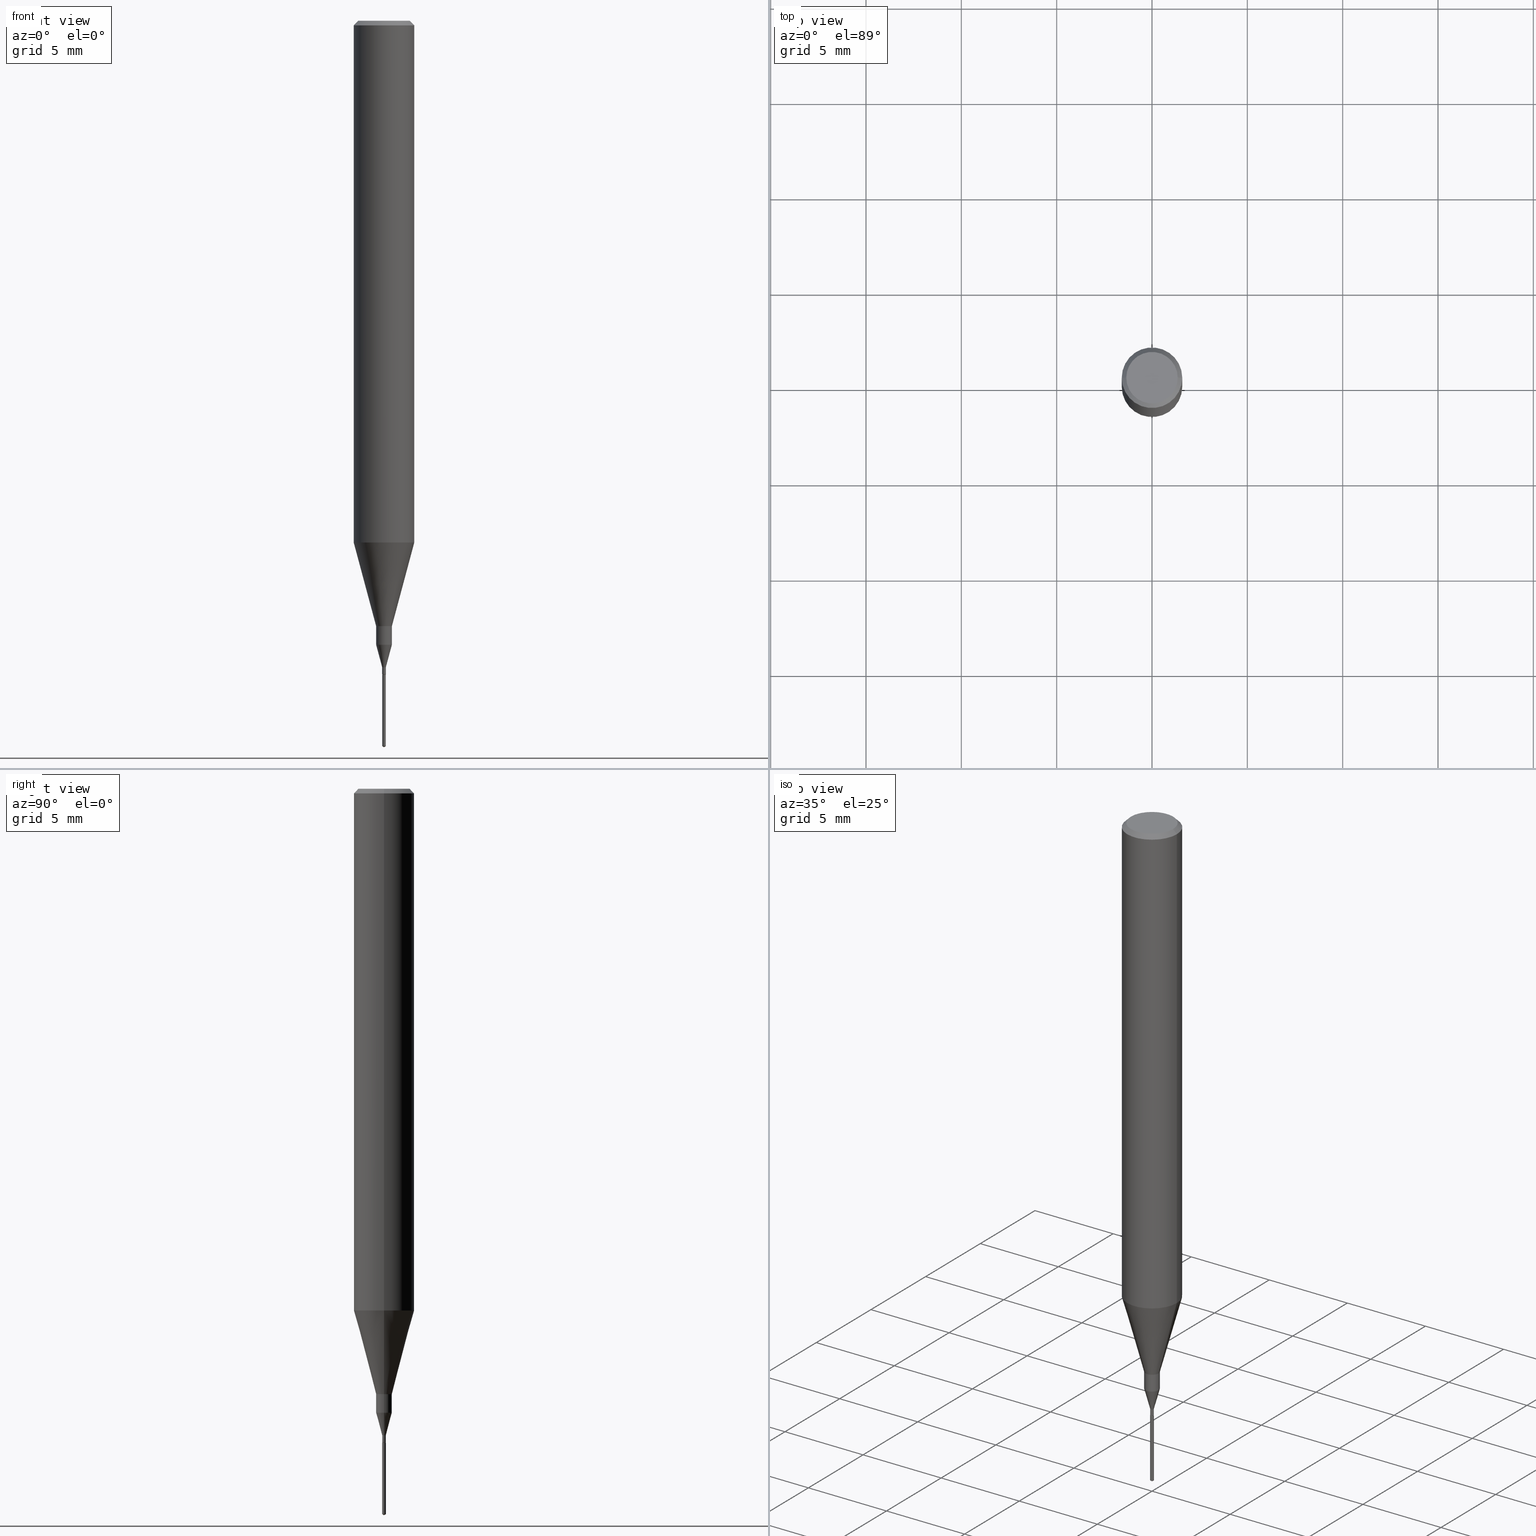
[diagram: canonical four-view strip — front | top / right | iso, engineering-drawing reading convention]
A machine part, canonical four-view strip (front | top / right | iso — engineering-drawing reading convention). The complete STEP part file that produces these views, byte-faithful:
ISO-10303-21;
HEADER;
FILE_DESCRIPTION (( 'STEP AP203' ),
    '1' );
FILE_NAME ('07245.STEP',
    '2024-04-19T13:30:18',
    ( '' ),
    ( '' ),
    'SwSTEP 2.0',
    'SolidWorks 2023',
    '' );
FILE_SCHEMA (( 'CONFIG_CONTROL_DESIGN' ));
ENDSEC;

DATA;
#1 = DIRECTION ( 'NONE',  ( 1.000000000000000000, -6.982962677686266711E-15, 4.875930095424100059E-29 ) ) ;
#2 = SECURITY_CLASSIFICATION_LEVEL ( 'unclassified' ) ;
#3 = CIRCLE ( 'NONE', #135, 0.01624999999999999709 ) ;
#4 =( NAMED_UNIT ( * ) PLANE_ANGLE_UNIT ( ) SI_UNIT ( $, .RADIAN. ) );
#5 = ADVANCED_FACE ( 'NONE', ( #122 ), #386, .T. ) ;
#6 = DIRECTION ( 'NONE',  ( 1.000000000000000000, -6.982962677686139704E-15, 0.000000000000000000 ) ) ;
#7 = CIRCLE ( 'NONE', #280, 0.06250000000000012490 ) ;
#8 = PRODUCT_DEFINITION_FORMATION_WITH_SPECIFIED_SOURCE ( 'ANY', '', #250, .NOT_KNOWN. ) ;
#9 = VECTOR ( 'NONE', #166, 39.37007874015748143 ) ;
#10 = DATE_AND_TIME ( #459, #360 ) ;
#11 = CARTESIAN_POINT ( 'NONE',  ( 3.301382888349935078E-29, -4.713499807438246596E-15, -1.350000000000000089 ) ) ;
#12 = DIRECTION ( 'NONE',  ( -2.445468806185136597E-29, 3.491481338843145583E-15, 1.000000000000000000 ) ) ;
#13 = ORIENTED_EDGE ( 'NONE', *, *, #264, .F. ) ;
#14 = ORIENTED_EDGE ( 'NONE', *, *, #23, .T. ) ;
#15 = PERSON_AND_ORGANIZATION ( #267, #49 ) ;
#16 = DIRECTION ( 'NONE',  ( 1.000000000000000000, -6.982962677686266711E-15, 4.876176775795935793E-29 ) ) ;
#17 = PERSON_AND_ORGANIZATION ( #267, #49 ) ;
#18 = EDGE_LOOP ( 'NONE', ( #540, #67, #542, #334 ) ) ;
#19 = CC_DESIGN_APPROVAL ( #31, ( #8 ) ) ;
#20 = LINE ( 'NONE', #431, #217 ) ;
#21 = PERSON_AND_ORGANIZATION_ROLE ( 'design_owner' ) ;
#22 = DIRECTION ( 'NONE',  ( -2.445468806185136597E-29, 3.491481338843145583E-15, 1.000000000000000000 ) ) ;
#23 = EDGE_CURVE ( 'NONE', #59, #584, #93, .T. ) ;
#24 = ORIENTED_EDGE ( 'NONE', *, *, #231, .T. ) ;
#25 = VERTEX_POINT ( 'NONE', #480 ) ;
#26 = AXIS2_PLACEMENT_3D ( 'NONE', #105, #306, #432 ) ;
#27 = CIRCLE ( 'NONE', #587, 0.01625000000000000056 ) ;
#28 = CARTESIAN_POINT ( 'NONE',  ( 3.674846187787069844E-29, -5.227856705711817904E-15, -1.500000000000000222 ) ) ;
#29 = ORIENTED_EDGE ( 'NONE', *, *, #458, .F. ) ;
#30 = EDGE_CURVE ( 'NONE', #570, #311, #77, .T. ) ;
#31 = APPROVAL ( #162, 'UNSPECIFIED' ) ;
#32 = CALENDAR_DATE ( 2024, 19, 4 ) ;
#33 = CONICAL_SURFACE ( 'NONE', #146, 0.06250000000000012490, 0.2617993877991501295 ) ;
#34 = ORIENTED_EDGE ( 'NONE', *, *, #108, .T. ) ;
#35 = VERTEX_POINT ( 'NONE', #361 ) ;
#36 = VERTEX_POINT ( 'NONE', #538 ) ;
#37 = VECTOR ( 'NONE', #438, 39.37007874015748854 ) ;
#38 = DIRECTION ( 'NONE',  ( 2.449828643397946138E-29, -3.485237803807878340E-15, -1.000000000000000000 ) ) ;
#39 = CARTESIAN_POINT ( 'NONE',  ( 0.06250000000000012490, -4.198131499960668153E-15, -1.077392650149939346 ) ) ;
#40 = AXIS2_PLACEMENT_3D ( 'NONE', #120, #225, #176 ) ;
#41 = ORIENTED_EDGE ( 'NONE', *, *, #458, .T. ) ;
#42 = AXIS2_PLACEMENT_3D ( 'NONE', #283, #43, #137 ) ;
#43 = DIRECTION ( 'NONE',  ( -2.438088387897960049E-29, 3.491481338843145188E-15, 1.000000000000000000 ) ) ;
#44 = CIRCLE ( 'NONE', #389, 0.01624999999999999709 ) ;
#45 = AXIS2_PLACEMENT_3D ( 'NONE', #463, #254, #552 ) ;
#46 = CARTESIAN_POINT ( 'NONE',  ( 3.301382888349935078E-29, -4.713499807438246596E-15, -1.350000000000000089 ) ) ;
#47 = DIRECTION ( 'NONE',  ( -2.445468806185136597E-29, 3.491481338843145583E-15, 1.000000000000000000 ) ) ;
#48 = ADVANCED_FACE ( 'NONE', ( #327 ), #461, .T. ) ;
#49 = ORGANIZATION ( 'UNSPECIFIED', 'UNSPECIFIED', '' ) ;
#50 = ADVANCED_FACE ( 'NONE', ( #253 ), #229, .T. ) ;
#51 = CONICAL_SURFACE ( 'NONE', #81, 0.06250000000000000000, 0.7853981633974452814 ) ;
#52 = CARTESIAN_POINT ( 'NONE',  ( 0.01625000000000000056, -4.611720908989987223E-15, -1.288349364905389427 ) ) ;
#53 = CYLINDRICAL_SURFACE ( 'NONE', #378, 0.003749999999999999428 ) ;
#54 = CARTESIAN_POINT ( 'NONE',  ( -2.618611004128684833E-17, -0.003750000000005227017, -1.497746772678646865 ) ) ;
#55 = LENGTH_MEASURE_WITH_UNIT ( LENGTH_MEASURE( 0.02539999999999999897 ), #416 );
#56 = DIRECTION ( 'NONE',  ( 1.000000000000000000, -6.982962677686288799E-15, 0.000000000000000000 ) ) ;
#57 = AXIS2_PLACEMENT_3D ( 'NONE', #244, #453, #418 ) ;
#58 = DIRECTION ( 'NONE',  ( 0.7071067811865453523, -7.319954787623248157E-15, -0.7071067811865496822 ) ) ;
#59 = VERTEX_POINT ( 'NONE', #488 ) ;
#60 = CARTESIAN_POINT ( 'NONE',  ( 0.01625000000000000056, -4.611720908989987223E-15, -1.288349364905389427 ) ) ;
#61 = APPROVAL_DATE_TIME ( #345, #245 ) ;
#62 = CARTESIAN_POINT ( 'NONE',  ( 3.264700856257157760E-29, -4.661127587355599122E-15, -1.335000000000000187 ) ) ;
#63 = DIRECTION ( 'NONE',  ( 2.438088387897960049E-29, -3.491481338843145188E-15, -1.000000000000000000 ) ) ;
#64 = ORIENTED_EDGE ( 'NONE', *, *, #440, .T. ) ;
#65 = AXIS2_PLACEMENT_3D ( 'NONE', #500, #414, #544 ) ;
#66 = ADVANCED_FACE ( 'NONE', ( #368 ), #234, .F. ) ;
#67 = ORIENTED_EDGE ( 'NONE', *, *, #395, .T. ) ;
#68 = CC_DESIGN_APPROVAL ( #245, ( #451 ) ) ;
#69 = FACE_OUTER_BOUND ( 'NONE', #216, .T. ) ;
#70 = ORIENTED_EDGE ( 'NONE', *, *, #319, .T. ) ;
#71 = CARTESIAN_POINT ( 'NONE',  ( 0.000000000000000000, 0.000000000000000000, 0.000000000000000000 ) ) ;
#72 = ORIENTED_EDGE ( 'NONE', *, *, #275, .F. ) ;
#73 = EDGE_CURVE ( 'NONE', #539, #88, #292, .T. ) ;
#74 = CC_DESIGN_DATE_AND_TIME_ASSIGNMENT ( #246, #427, ( #249 ) ) ;
#75 = CYLINDRICAL_SURFACE ( 'NONE', #113, 0.06250000000000006939 ) ;
#76 = DIRECTION ( 'NONE',  ( 1.000000000000000000, -6.982962677686139704E-15, 0.000000000000000000 ) ) ;
#77 = LINE ( 'NONE', #124, #175 ) ;
#78 = DIRECTION ( 'NONE',  ( -5.985567269335973623E-15, -0.8571673007021146651, 0.5150380749100500477 ) ) ;
#79 = DIRECTION ( 'NONE',  ( 0.7071067811866184050, -2.468850131082999773E-15, 0.7071067811864765185 ) ) ;
#80 = DIRECTION ( 'NONE',  ( -0.2588190451025214611, 5.211531920934551042E-15, 0.9659258262890682012 ) ) ;
#81 = AXIS2_PLACEMENT_3D ( 'NONE', #147, #426, #153 ) ;
#82 = DIRECTION ( 'NONE',  ( -0.2588190451025219052, 5.211531920934553408E-15, 0.9659258262890679791 ) ) ;
#83 = DIRECTION ( 'NONE',  ( -2.445468806185136597E-29, 3.491481338843145583E-15, 1.000000000000000000 ) ) ;
#84 = ORIENTED_EDGE ( 'NONE', *, *, #239, .T. ) ;
#85 = DIRECTION ( 'NONE',  ( -2.445468806185136597E-29, 3.491481338843145583E-15, 1.000000000000000000 ) ) ;
#86 = CARTESIAN_POINT ( 'NONE',  ( -9.278108940561071411E-28, 1.319778012860802633E-13, 37.87007874015748143 ) ) ;
#87 = EDGE_CURVE ( 'NONE', #25, #350, #187, .T. ) ;
#88 = VERTEX_POINT ( 'NONE', #379 ) ;
#89 = ORIENTED_EDGE ( 'NONE', *, *, #73, .F. ) ;
#90 = EDGE_CURVE ( 'NONE', #35, #136, #195, .T. ) ;
#91 = DIRECTION ( 'NONE',  ( -2.445468806185136877E-29, 3.491481338843145188E-15, 1.000000000000000000 ) ) ;
#92 = DIRECTION ( 'NONE',  ( -2.445468806185136597E-29, 3.491481338843145583E-15, 1.000000000000000000 ) ) ;
#93 = CIRCLE ( 'NONE', #260, 0.05312499999999999861 ) ;
#94 = CARTESIAN_POINT ( 'NONE',  ( 2.634730117954813298E-29, -3.761696332605275695E-15, -1.077392650149939346 ) ) ;
#95 = DIRECTION ( 'NONE',  ( -2.449828643397946418E-29, 3.485237803807878340E-15, 1.000000000000000000 ) ) ;
#96 = LINE ( 'NONE', #188, #478 ) ;
#97 = COORDINATED_UNIVERSAL_TIME_OFFSET ( 5, 0, .BEHIND. ) ;
#98 = DIRECTION ( 'NONE',  ( -2.445468806185136597E-29, 3.491481338843145583E-15, 1.000000000000000000 ) ) ;
#99 = DIRECTION ( 'NONE',  ( 1.000000000000000000, -6.982962677686264344E-15, 0.000000000000000000 ) ) ;
#100 = PERSON_AND_ORGANIZATION_ROLE ( 'creator' ) ;
#101 = VECTOR ( 'NONE', #179, 39.37007874015748143 ) ;
#102 = FACE_OUTER_BOUND ( 'NONE', #273, .T. ) ;
#103 = PERSON_AND_ORGANIZATION ( #267, #49 ) ;
#104 = ORIENTED_EDGE ( 'NONE', *, *, #90, .F. ) ;
#105 = CARTESIAN_POINT ( 'NONE',  ( 3.150618183344561304E-29, -4.498247765477585547E-15, -1.288349364905389427 ) ) ;
#106 = CIRCLE ( 'NONE', #156, 0.003749999999999998994 ) ;
#107 = VERTEX_POINT ( 'NONE', #189 ) ;
#108 = EDGE_CURVE ( 'NONE', #143, #435, #284, .T. ) ;
#109 = DIMENSIONAL_EXPONENTS ( 1.000000000000000000, 0.000000000000000000, 0.000000000000000000, 0.000000000000000000, 0.000000000000000000, 0.000000000000000000, 0.000000000000000000 ) ;
#110 = AXIS2_PLACEMENT_3D ( 'NONE', #516, #112, #471 ) ;
#111 = ORIENTED_EDGE ( 'NONE', *, *, #23, .F. ) ;
#112 = DIRECTION ( 'NONE',  ( -2.449828643397946418E-29, 3.485237803807878340E-15, 1.000000000000000000 ) ) ;
#113 = AXIS2_PLACEMENT_3D ( 'NONE', #119, #317, #271 ) ;
#114 = ORIENTED_EDGE ( 'NONE', *, *, #356, .F. ) ;
#115 = DIRECTION ( 'NONE',  ( -2.445468806185136877E-29, 3.491481338843145188E-15, 1.000000000000000000 ) ) ;
#116 = DIRECTION ( 'NONE',  ( -2.445468806185136597E-29, 3.491481338843145583E-15, 1.000000000000000000 ) ) ;
#117 = DIRECTION ( 'NONE',  ( 2.445468806185136597E-29, -3.491481338843145583E-15, -1.000000000000000000 ) ) ;
#118 = EDGE_LOOP ( 'NONE', ( #430, #282, #357, #269 ) ) ;
#119 = CARTESIAN_POINT ( 'NONE',  ( 0.000000000000000000, 0.000000000000000000, 0.000000000000000000 ) ) ;
#120 = CARTESIAN_POINT ( 'NONE',  ( 0.000000000000000000, 0.000000000000000000, 0.000000000000000000 ) ) ;
#121 = LINE ( 'NONE', #362, #550 ) ;
#122 = FACE_OUTER_BOUND ( 'NONE', #224, .T. ) ;
#123 = AXIS2_PLACEMENT_3D ( 'NONE', #390, #212, #76 ) ;
#124 = CARTESIAN_POINT ( 'NONE',  ( -0.06250000000000012490, -3.317607122755211895E-15, -1.077392650149939346 ) ) ;
#125 = CARTESIAN_POINT ( 'NONE',  ( -0.06250000000000006939, 4.440892098500631092E-16, -3.074334431409319267E-30 ) ) ;
#126 = DIRECTION ( 'NONE',  ( -2.445468806185136597E-29, 3.491481338843145583E-15, 1.000000000000000000 ) ) ;
#127 = EDGE_LOOP ( 'NONE', ( #72, #159, #490, #208 ) ) ;
#128 = ADVANCED_FACE ( 'NONE', ( #503 ), #33, .T. ) ;
#129 = ADVANCED_BREP_SHAPE_REPRESENTATION ( '07245', ( #235, #302, #40 ), #495 ) ;
#130 = ORIENTED_EDGE ( 'NONE', *, *, #199, .T. ) ;
#131 = DIRECTION ( 'NONE',  ( -6.982962677686265133E-15, -1.000000000000000000, 3.468864327941528739E-15 ) ) ;
#132 = DIRECTION ( 'NONE',  ( -6.982962677686265133E-15, -1.000000000000000000, 3.468864327941528739E-15 ) ) ;
#133 = CIRCLE ( 'NONE', #200, 0.003749999999999994223 ) ;
#134 = CIRCLE ( 'NONE', #573, 0.003250000000000000284 ) ;
#135 = AXIS2_PLACEMENT_3D ( 'NONE', #555, #98, #333 ) ;
#136 = VERTEX_POINT ( 'NONE', #498 ) ;
#137 = DIRECTION ( 'NONE',  ( 1.000000000000000000, -6.982962677686265922E-15, 4.876176775795935793E-29 ) ) ;
#138 = CLOSED_SHELL ( 'NONE', ( #347, #50, #499, #533, #243 ) ) ;
#139 = EDGE_CURVE ( 'NONE', #59, #36, #96, .T. ) ;
#140 = AXIS2_PLACEMENT_3D ( 'NONE', #71, #266, #16 ) ;
#141 = CARTESIAN_POINT ( 'NONE',  ( 0.06250000000000006939, -4.364351673553921624E-16, 3.047610484872463374E-30 ) ) ;
#142 = CC_DESIGN_PERSON_AND_ORGANIZATION_ASSIGNMENT ( #366, #412, ( #8 ) ) ;
#143 = VERTEX_POINT ( 'NONE', #54 ) ;
#144 = CONICAL_SURFACE ( 'NONE', #562, 0.003250000000000000284, 0.7853981633975486432 ) ;
#145 = LINE ( 'NONE', #337, #575 ) ;
#146 = AXIS2_PLACEMENT_3D ( 'NONE', #375, #546, #99 ) ;
#147 = CARTESIAN_POINT ( 'NONE',  ( 2.292627005798582375E-31, -3.273263755165472650E-17, -0.009375000000000067307 ) ) ;
#148 = ORIENTED_EDGE ( 'NONE', *, *, #139, .F. ) ;
#149 = APPROVAL_STATUS ( 'not_yet_approved' ) ;
#150 = EDGE_CURVE ( 'NONE', #311, #539, #316, .T. ) ;
#151 = EDGE_LOOP ( 'NONE', ( #64, #305 ) ) ;
#152 = CC_DESIGN_PERSON_AND_ORGANIZATION_ASSIGNMENT ( #103, #261, ( #249 ) ) ;
#153 = DIRECTION ( 'NONE',  ( -1.000000000000000000, 6.982962677686266711E-15, 0.000000000000000000 ) ) ;
#154 = COORDINATED_UNIVERSAL_TIME_OFFSET ( 5, 0, .BEHIND. ) ;
#155 = APPROVAL_STATUS ( 'not_yet_approved' ) ;
#156 = AXIS2_PLACEMENT_3D ( 'NONE', #338, #505, #242 ) ;
#157 = ORIENTED_EDGE ( 'NONE', *, *, #582, .T. ) ;
#158 = APPROVAL_ROLE ( '' ) ;
#159 = ORIENTED_EDGE ( 'NONE', *, *, #356, .T. ) ;
#160 = DIRECTION ( 'NONE',  ( -2.445468806185136877E-29, 3.491481338843145188E-15, 1.000000000000000000 ) ) ;
#161 = UNCERTAINTY_MEASURE_WITH_UNIT (LENGTH_MEASURE( 1.000000000000000082E-05 ), #286, 'distance_accuracy_value', 'NONE');
#162 = APPROVAL_STATUS ( 'not_yet_approved' ) ;
#163 = ORIENTED_EDGE ( 'NONE', *, *, #199, .F. ) ;
#164 = LOCAL_TIME ( 9, 30, 18.00000000000000000, #419 ) ;
#165 = EDGE_LOOP ( 'NONE', ( #255, #523, #130, #204 ) ) ;
#166 = DIRECTION ( 'NONE',  ( -2.445468806185136877E-29, 3.491481338843145188E-15, 1.000000000000000000 ) ) ;
#167 = ORIENTED_EDGE ( 'NONE', *, *, #192, .T. ) ;
#168 = CARTESIAN_POINT ( 'NONE',  ( 3.301382888349935078E-29, -4.713499807438246596E-15, -1.350000000000000089 ) ) ;
#169 = DIRECTION ( 'NONE',  ( -6.982962677686265922E-15, -1.000000000000000000, 0.000000000000000000 ) ) ;
#170 = FACE_OUTER_BOUND ( 'NONE', #481, .T. ) ;
#171 = FACE_OUTER_BOUND ( 'NONE', #214, .T. ) ;
#172 = ADVANCED_FACE ( 'NONE', ( #384 ), #232, .T. ) ;
#173 = DIRECTION ( 'NONE',  ( -2.445468806185136597E-29, 3.491481338843145583E-15, 1.000000000000000000 ) ) ;
#174 = ADVANCED_FACE ( 'NONE', ( #511 ), #507, .T. ) ;
#175 = VECTOR ( 'NONE', #80, 39.37007874015747433 ) ;
#176 = DIRECTION ( 'NONE',  ( 1.000000000000000000, 0.000000000000000000, 0.000000000000000000 ) ) ;
#177 = VECTOR ( 'NONE', #91, 39.37007874015748143 ) ;
#178 = ORIENTED_EDGE ( 'NONE', *, *, #108, .F. ) ;
#179 = DIRECTION ( 'NONE',  ( -2.449828643397946418E-29, 3.485237803807878340E-15, 1.000000000000000000 ) ) ;
#180 = ORIENTED_EDGE ( 'NONE', *, *, #239, .F. ) ;
#181 = EDGE_CURVE ( 'NONE', #107, #25, #381, .T. ) ;
#182 = EDGE_CURVE ( 'NONE', #143, #479, #372, .T. ) ;
#183 = ORIENTED_EDGE ( 'NONE', *, *, #371, .T. ) ;
#184 = SHAPE_DEFINITION_REPRESENTATION ( #202, #129 ) ;
#185 = DIRECTION ( 'NONE',  ( 1.000000000000000000, -6.982962677686267499E-15, 4.876176775795936353E-29 ) ) ;
#186 =( NAMED_UNIT ( * ) SI_UNIT ( $, .STERADIAN. ) SOLID_ANGLE_UNIT ( ) );
#187 = LINE ( 'NONE', #52, #301 ) ;
#188 = CARTESIAN_POINT ( 'NONE',  ( -0.06250000000000000000, 4.037025298037369491E-16, -0.009375000000000067307 ) ) ;
#189 = CARTESIAN_POINT ( 'NONE',  ( -0.003749999999999994223, -4.659795474471208129E-15, -1.335000000000000187 ) ) ;
#190 = VECTOR ( 'NONE', #496, 39.37007874015748143 ) ;
#191 = CARTESIAN_POINT ( 'NONE',  ( 3.301382888349935078E-29, -4.713499807438246596E-15, -1.350000000000000089 ) ) ;
#192 = EDGE_CURVE ( 'NONE', #36, #88, #504, .T. ) ;
#193 = CONICAL_SURFACE ( 'NONE', #543, 65.52281426576966794, 1.029744258676662749 ) ;
#194 = CC_DESIGN_SECURITY_CLASSIFICATION ( #249, ( #8 ) ) ;
#195 = CIRCLE ( 'NONE', #520, 0.003749999999999999428 ) ;
#196 = ORIENTED_EDGE ( 'NONE', *, *, #413, .T. ) ;
#197 = AXIS2_PLACEMENT_3D ( 'NONE', #247, #285, #233 ) ;
#198 = CARTESIAN_POINT ( 'NONE',  ( 3.301382888349935078E-29, -4.713499807438246596E-15, -1.350000000000000089 ) ) ;
#199 = EDGE_CURVE ( 'NONE', #307, #539, #145, .T. ) ;
#200 = AXIS2_PLACEMENT_3D ( 'NONE', #62, #22, #568 ) ;
#201 = DIRECTION ( 'NONE',  ( -6.982962677686265922E-15, -1.000000000000000000, 0.000000000000000000 ) ) ;
#202 = PRODUCT_DEFINITION_SHAPE ( 'NONE', 'NONE',  #451 ) ;
#203 = APPLICATION_CONTEXT ( 'configuration controlled 3d designs of mechanical parts and assemblies' ) ;
#204 = ORIENTED_EDGE ( 'NONE', *, *, #150, .F. ) ;
#205 = VERTEX_POINT ( 'NONE', #502 ) ;
#206 = FACE_OUTER_BOUND ( 'NONE', #118, .T. ) ;
#207 = CARTESIAN_POINT ( 'NONE',  ( 2.634730117954813298E-29, -3.761696332605275695E-15, -1.077392650149939346 ) ) ;
#208 = ORIENTED_EDGE ( 'NONE', *, *, #310, .F. ) ;
#209 = CARTESIAN_POINT ( 'NONE',  ( -0.003250000000000000284, -4.687757941351932315E-15, -1.350000000000000089 ) ) ;
#210 = FACE_OUTER_BOUND ( 'NONE', #18, .T. ) ;
#211 = AXIS2_PLACEMENT_3D ( 'NONE', #308, #258, #567 ) ;
#212 = DIRECTION ( 'NONE',  ( -2.445468806185136597E-29, 3.491481338843145583E-15, 1.000000000000000000 ) ) ;
#213 = CARTESIAN_POINT ( 'NONE',  ( 3.674742965096920047E-29, -5.227856705711817904E-15, -1.500000000000000222 ) ) ;
#214 = EDGE_LOOP ( 'NONE', ( #332, #24, #487, #398 ) ) ;
#215 = FACE_OUTER_BOUND ( 'NONE', #300, .T. ) ;
#216 = EDGE_LOOP ( 'NONE', ( #433, #196, #449, #279 ) ) ;
#217 = VECTOR ( 'NONE', #160, 39.37007874015748143 ) ;
#218 = DIRECTION ( 'NONE',  ( -2.445468806185136597E-29, 3.491481338843145583E-15, 1.000000000000000000 ) ) ;
#219 = ORIENTED_EDGE ( 'NONE', *, *, #407, .T. ) ;
#220 = DIRECTION ( 'NONE',  ( 1.000000000000000000, -6.982962677686266711E-15, 4.875930095424100059E-29 ) ) ;
#221 = DIRECTION ( 'NONE',  ( 1.000000000000000000, -6.982962677686267499E-15, 4.876176775795936353E-29 ) ) ;
#222 = EDGE_CURVE ( 'NONE', #307, #570, #3, .T. ) ;
#223 = CARTESIAN_POINT ( 'NONE',  ( -0.01624999999999999709, -4.315836524954742429E-15, -1.250000000000000000 ) ) ;
#224 = EDGE_LOOP ( 'NONE', ( #343, #445, #318, #256 ) ) ;
#225 = DIRECTION ( 'NONE',  ( 0.000000000000000000, 0.000000000000000000, 1.000000000000000000 ) ) ;
#226 = ORIENTED_EDGE ( 'NONE', *, *, #574, .F. ) ;
#227 = DIRECTION ( 'NONE',  ( -2.449828643397946418E-29, 3.485237803807878340E-15, 1.000000000000000000 ) ) ;
#228 = LINE ( 'NONE', #125, #454 ) ;
#229 = CONICAL_SURFACE ( 'NONE', #312, 65.52281426576966794, 1.029744258676662749 ) ;
#230 = CARTESIAN_POINT ( 'NONE',  ( 3.150618183344561304E-29, -4.498247765477585547E-15, -1.288349364905389427 ) ) ;
#231 = EDGE_CURVE ( 'NONE', #394, #350, #27, .T. ) ;
#232 = CONICAL_SURFACE ( 'NONE', #556, 0.06250000000000000000, 0.7853981633974452814 ) ;
#233 = DIRECTION ( 'NONE',  ( 1.000000000000000000, -6.982962677686149170E-15, 0.000000000000000000 ) ) ;
#234 = PLANE ( 'NONE',  #42 ) ;
#235 = MANIFOLD_SOLID_BREP ( 'Body-Move/Copy2[1]', #138 ) ;
#236 = DIRECTION ( 'NONE',  ( -2.449828643397946418E-29, 3.485237803807878340E-15, 1.000000000000000000 ) ) ;
#237 = CARTESIAN_POINT ( 'NONE',  ( -2.618611004129048141E-17, -0.003750000000004713105, -1.350000000000000089 ) ) ;
#238 = CARTESIAN_POINT ( 'NONE',  ( 0.000000000000000000, 0.000000000000000000, 0.000000000000000000 ) ) ;
#239 = EDGE_CURVE ( 'NONE', #584, #59, #270, .T. ) ;
#240 = CIRCLE ( 'NONE', #313, 0.003250000000000000284 ) ;
#241 = AXIS2_PLACEMENT_3D ( 'NONE', #11, #299, #201 ) ;
#242 = DIRECTION ( 'NONE',  ( -6.982962677686265922E-15, -1.000000000000000000, 0.000000000000000000 ) ) ;
#243 = ADVANCED_FACE ( 'NONE', ( #399 ), #585, .F. ) ;
#244 = CARTESIAN_POINT ( 'NONE',  ( 3.663337164027688427E-29, -5.228432444968474746E-15, -1.497746772678646865 ) ) ;
#245 = APPROVAL ( #149, 'UNSPECIFIED' ) ;
#246 = DATE_AND_TIME ( #377, #164 ) ;
#247 = CARTESIAN_POINT ( 'NONE',  ( 3.264700856257157760E-29, -4.661127587355599122E-15, -1.335000000000000187 ) ) ;
#248 = CARTESIAN_POINT ( 'NONE',  ( 3.300160153946842277E-29, -4.711754066768825092E-15, -1.349500000000000144 ) ) ;
#249 = SECURITY_CLASSIFICATION ( '', '', #2 ) ;
#250 = PRODUCT ( '07245', '07245', '', ( #529 ) ) ;
#251 = VECTOR ( 'NONE', #514, 39.37007874015748854 ) ;
#252 = EDGE_CURVE ( 'NONE', #311, #36, #228, .T. ) ;
#253 = FACE_OUTER_BOUND ( 'NONE', #406, .T. ) ;
#254 = DIRECTION ( 'NONE',  ( -2.445468806185136597E-29, 3.491481338843145583E-15, 1.000000000000000000 ) ) ;
#255 = ORIENTED_EDGE ( 'NONE', *, *, #30, .F. ) ;
#256 = ORIENTED_EDGE ( 'NONE', *, *, #231, .F. ) ;
#257 = CALENDAR_DATE ( 2024, 19, 4 ) ;
#258 = DIRECTION ( 'NONE',  ( -2.445468806185136597E-29, 3.491481338843145583E-15, 1.000000000000000000 ) ) ;
#259 = AXIS2_PLACEMENT_3D ( 'NONE', #494, #92, #524 ) ;
#260 = AXIS2_PLACEMENT_3D ( 'NONE', #588, #410, #1 ) ;
#261 = PERSON_AND_ORGANIZATION_ROLE ( 'classification_officer' ) ;
#262 = EDGE_LOOP ( 'NONE', ( #470, #396, #525, #277 ) ) ;
#263 = AXIS2_PLACEMENT_3D ( 'NONE', #238, #83, #185 ) ;
#264 = EDGE_CURVE ( 'NONE', #88, #36, #541, .T. ) ;
#265 = ORIENTED_EDGE ( 'NONE', *, *, #139, .T. ) ;
#266 = DIRECTION ( 'NONE',  ( -2.445468806185136597E-29, 3.491481338843145583E-15, 1.000000000000000000 ) ) ;
#267 = PERSON ( 'UNSPECIFIED', 'UNSPECIFIED', 'UNSPECIFIED', ('UNSPECIFIED'), ('UNSPECIFIED'), ('UNSPECIFIED') ) ;
#268 = CARTESIAN_POINT ( 'NONE',  ( 7.076796394983739835E-47, -1.010378970665454992E-32, -2.893840386385196200E-18 ) ) ;
#269 = ORIENTED_EDGE ( 'NONE', *, *, #192, .F. ) ;
#270 = CIRCLE ( 'NONE', #531, 0.05312499999999999861 ) ;
#271 = DIRECTION ( 'NONE',  ( 1.000000000000000000, -6.982962677686266711E-15, 4.876176775795935793E-29 ) ) ;
#272 = COORDINATED_UNIVERSAL_TIME_OFFSET ( 5, 0, .BEHIND. ) ;
#273 = EDGE_LOOP ( 'NONE', ( #340, #157, #104, #492 ) ) ;
#274 = CARTESIAN_POINT ( 'NONE',  ( 1.415359278996747967E-46, -2.020757941330909984E-32, -5.787680772770392401E-18 ) ) ;
#275 = EDGE_CURVE ( 'NONE', #435, #205, #408, .T. ) ;
#276 = CC_DESIGN_PERSON_AND_ORGANIZATION_ASSIGNMENT ( #513, #100, ( #451 ) ) ;
#277 = ORIENTED_EDGE ( 'NONE', *, *, #181, .F. ) ;
#278 = CARTESIAN_POINT ( 'NONE',  ( 0.003250000000000000284, -4.736194436140726931E-15, -1.350000000000000089 ) ) ;
#279 = ORIENTED_EDGE ( 'NONE', *, *, #483, .F. ) ;
#280 = AXIS2_PLACEMENT_3D ( 'NONE', #94, #12, #290 ) ;
#281 = LOCAL_TIME ( 9, 30, 18.00000000000000000, #154 ) ;
#282 = ORIENTED_EDGE ( 'NONE', *, *, #150, .T. ) ;
#283 = CARTESIAN_POINT ( 'NONE',  ( 3.301382888349935078E-29, -4.713499807438246596E-15, -1.350000000000000089 ) ) ;
#284 = CIRCLE ( 'NONE', #57, 0.003749999999999998994 ) ;
#285 = DIRECTION ( 'NONE',  ( -2.445468806185136597E-29, 3.491481338843145583E-15, 1.000000000000000000 ) ) ;
#286 =( CONVERSION_BASED_UNIT ( 'INCH', #55 ) LENGTH_UNIT ( ) NAMED_UNIT ( #109 ) );
#287 = DIRECTION ( 'NONE',  ( 0.2588190451025219052, 1.565188264969617826E-15, 0.9659258262890679791 ) ) ;
#288 = LOCAL_TIME ( 9, 30, 18.00000000000000000, #272 ) ;
#289 = EDGE_CURVE ( 'NONE', #473, #143, #364, .T. ) ;
#290 = DIRECTION ( 'NONE',  ( 1.000000000000000000, -6.982962677686264344E-15, 0.000000000000000000 ) ) ;
#291 = DIRECTION ( 'NONE',  ( -0.7071067811865453523, 2.468850131082234184E-15, -0.7071067811865496822 ) ) ;
#292 = LINE ( 'NONE', #141, #177 ) ;
#293 = CIRCLE ( 'NONE', #110, 0.003749999999999999861 ) ;
#294 = CIRCLE ( 'NONE', #26, 0.01625000000000000056 ) ;
#295 = DIRECTION ( 'NONE',  ( 0.2588190451025214611, 1.565188264969621573E-15, 0.9659258262890682012 ) ) ;
#296 = ADVANCED_FACE ( 'NONE', ( #210 ), #144, .T. ) ;
#297 = AXIS2_PLACEMENT_3D ( 'NONE', #446, #324, #482 ) ;
#298 = ADVANCED_FACE ( 'NONE', ( #171 ), #326, .T. ) ;
#299 = DIRECTION ( 'NONE',  ( -2.449828643397946418E-29, 3.485237803807878340E-15, 1.000000000000000000 ) ) ;
#300 = EDGE_LOOP ( 'NONE', ( #29, #464, #114 ) ) ;
#301 = VECTOR ( 'NONE', #287, 39.37007874015748143 ) ;
#302 = MANIFOLD_SOLID_BREP ( 'Body-Move/Copy2[2]', #553 ) ;
#303 = CARTESIAN_POINT ( 'NONE',  ( 3.056836007731421306E-29, -4.364351673553932471E-15, -1.250000000000000000 ) ) ;
#304 = CARTESIAN_POINT ( 'NONE',  ( -2.618611004129048449E-17, -0.003750000000004713539, -1.350000000000000089 ) ) ;
#305 = ORIENTED_EDGE ( 'NONE', *, *, #310, .T. ) ;
#306 = DIRECTION ( 'NONE',  ( -2.445468806185136597E-29, 3.491481338843145583E-15, 1.000000000000000000 ) ) ;
#307 = VERTEX_POINT ( 'NONE', #444 ) ;
#308 = CARTESIAN_POINT ( 'NONE',  ( 0.000000000000000000, 0.000000000000000000, 0.000000000000000000 ) ) ;
#309 = LOCAL_TIME ( 9, 30, 18.00000000000000000, #383 ) ;
#310 = EDGE_CURVE ( 'NONE', #205, #479, #354, .T. ) ;
#311 = VERTEX_POINT ( 'NONE', #521 ) ;
#312 = AXIS2_PLACEMENT_3D ( 'NONE', #401, #227, #131 ) ;
#313 = AXIS2_PLACEMENT_3D ( 'NONE', #198, #460, #421 ) ;
#314 = CARTESIAN_POINT ( 'NONE',  ( 3.301382888349935078E-29, -4.713499807438246596E-15, -1.350000000000000089 ) ) ;
#315 = ORIENTED_EDGE ( 'NONE', *, *, #387, .F. ) ;
#316 = CIRCLE ( 'NONE', #411, 0.06250000000000012490 ) ;
#317 = DIRECTION ( 'NONE',  ( -2.445468806185136597E-29, 3.491481338843145583E-15, 1.000000000000000000 ) ) ;
#318 = ORIENTED_EDGE ( 'NONE', *, *, #87, .T. ) ;
#319 = EDGE_CURVE ( 'NONE', #584, #88, #554, .T. ) ;
#320 = DIRECTION ( 'NONE',  ( 1.000000000000000000, -6.982962677686258033E-15, 0.000000000000000000 ) ) ;
#321 = EDGE_CURVE ( 'NONE', #382, #437, #240, .T. ) ;
#322 = AXIS2_PLACEMENT_3D ( 'NONE', #441, #447, #221 ) ;
#323 = ORIENTED_EDGE ( 'NONE', *, *, #30, .T. ) ;
#324 = DIRECTION ( 'NONE',  ( -2.445468806185136597E-29, 3.491481338843145583E-15, 1.000000000000000000 ) ) ;
#325 = DIRECTION ( 'NONE',  ( 1.000000000000000000, -6.982962677686257244E-15, 0.000000000000000000 ) ) ;
#326 = CYLINDRICAL_SURFACE ( 'NONE', #263, 0.01624999999999999709 ) ;
#327 = FACE_OUTER_BOUND ( 'NONE', #165, .T. ) ;
#328 = ORIENTED_EDGE ( 'NONE', *, *, #182, .F. ) ;
#329 = CIRCLE ( 'NONE', #123, 0.003749999999999999428 ) ;
#330 = FACE_OUTER_BOUND ( 'NONE', #439, .T. ) ;
#331 = AXIS2_PLACEMENT_3D ( 'NONE', #268, #63, #434 ) ;
#332 = ORIENTED_EDGE ( 'NONE', *, *, #443, .F. ) ;
#333 = DIRECTION ( 'NONE',  ( 1.000000000000000000, -6.982962677686288799E-15, 0.000000000000000000 ) ) ;
#334 = ORIENTED_EDGE ( 'NONE', *, *, #404, .F. ) ;
#335 = DIRECTION ( 'NONE',  ( -6.982962677686265922E-15, -1.000000000000000000, 0.000000000000000000 ) ) ;
#336 = EDGE_CURVE ( 'NONE', #570, #307, #44, .T. ) ;
#337 = CARTESIAN_POINT ( 'NONE',  ( 0.06250000000000012490, -4.198131499960668153E-15, -1.077392650149939346 ) ) ;
#338 = CARTESIAN_POINT ( 'NONE',  ( 3.663337164027688427E-29, -5.228432444968474746E-15, -1.497746772678646865 ) ) ;
#339 = DIRECTION ( 'NONE',  ( -1.000000000000000000, 6.982962677686266711E-15, 0.000000000000000000 ) ) ;
#340 = ORIENTED_EDGE ( 'NONE', *, *, #321, .T. ) ;
#341 = CYLINDRICAL_SURFACE ( 'NONE', #241, 0.003749999999999999428 ) ;
#342 = PERSON_AND_ORGANIZATION ( #267, #49 ) ;
#343 = ORIENTED_EDGE ( 'NONE', *, *, #371, .F. ) ;
#344 = AXIS2_PLACEMENT_3D ( 'NONE', #46, #236, #335 ) ;
#345 = DATE_AND_TIME ( #467, #281 ) ;
#346 = EDGE_LOOP ( 'NONE', ( #180, #70, #519, #148 ) ) ;
#347 = ADVANCED_FACE ( 'NONE', ( #564 ), #341, .T. ) ;
#348 = CARTESIAN_POINT ( 'NONE',  ( 2.664535259104037330E-17, 0.003749999999994769670, -1.497746772678646865 ) ) ;
#349 = LINE ( 'NONE', #28, #251 ) ;
#350 = VERTEX_POINT ( 'NONE', #60 ) ;
#351 = CYLINDRICAL_SURFACE ( 'NONE', #140, 0.06250000000000006939 ) ;
#352 = CARTESIAN_POINT ( 'NONE',  ( 3.301382888349935078E-29, -4.713499807438246596E-15, -1.350000000000000089 ) ) ;
#353 = ORIENTED_EDGE ( 'NONE', *, *, #395, .F. ) ;
#354 = CIRCLE ( 'NONE', #344, 0.003749999999999999861 ) ;
#355 = ADVANCED_FACE ( 'NONE', ( #380 ), #51, .T. ) ;
#356 = EDGE_CURVE ( 'NONE', #435, #143, #106, .T. ) ;
#357 = ORIENTED_EDGE ( 'NONE', *, *, #73, .T. ) ;
#358 = ORIENTED_EDGE ( 'NONE', *, *, #222, .T. ) ;
#359 = DIRECTION ( 'NONE',  ( 6.982962677686265922E-15, 1.000000000000000000, -3.485237803807878340E-15 ) ) ;
#360 = LOCAL_TIME ( 9, 30, 18.00000000000000000, #97 ) ;
#361 = CARTESIAN_POINT ( 'NONE',  ( 0.003749999999999999428, -4.737940176810149223E-15, -1.349500000000000144 ) ) ;
#362 = CARTESIAN_POINT ( 'NONE',  ( 0.003250000000000000284, -4.736194436140726931E-15, -1.350000000000000089 ) ) ;
#363 = ORIENTED_EDGE ( 'NONE', *, *, #289, .F. ) ;
#364 = LINE ( 'NONE', #472, #551 ) ;
#365 = ADVANCED_FACE ( 'NONE', ( #102 ), #402, .T. ) ;
#366 = PERSON_AND_ORGANIZATION ( #267, #49 ) ;
#367 = ORIENTED_EDGE ( 'NONE', *, *, #465, .T. ) ;
#368 = FACE_OUTER_BOUND ( 'NONE', #508, .T. ) ;
#369 = AXIS2_PLACEMENT_3D ( 'NONE', #485, #497, #462 ) ;
#370 = APPROVAL_DATE_TIME ( #436, #31 ) ;
#371 = EDGE_CURVE ( 'NONE', #107, #394, #405, .T. ) ;
#372 = LINE ( 'NONE', #237, #190 ) ;
#373 = PRODUCT_RELATED_PRODUCT_CATEGORY ( 'detail', '', ( #250 ) ) ;
#374 = PERSON_AND_ORGANIZATION ( #267, #49 ) ;
#375 = CARTESIAN_POINT ( 'NONE',  ( 2.634730117954813298E-29, -3.761696332605275695E-15, -1.077392650149939346 ) ) ;
#376 = AXIS2_PLACEMENT_3D ( 'NONE', #314, #126, #325 ) ;
#377 = CALENDAR_DATE ( 2024, 19, 4 ) ;
#378 = AXIS2_PLACEMENT_3D ( 'NONE', #586, #535, #169 ) ;
#379 = CARTESIAN_POINT ( 'NONE',  ( 0.06250000000000000000, -4.691678049070464390E-16, -0.009375000000000067307 ) ) ;
#380 = FACE_OUTER_BOUND ( 'NONE', #559, .T. ) ;
#381 = CIRCLE ( 'NONE', #197, 0.003749999999999994223 ) ;
#382 = VERTEX_POINT ( 'NONE', #278 ) ;
#383 = COORDINATED_UNIVERSAL_TIME_OFFSET ( 5, 0, .BEHIND. ) ;
#384 = FACE_OUTER_BOUND ( 'NONE', #346, .T. ) ;
#385 = ORIENTED_EDGE ( 'NONE', *, *, #87, .F. ) ;
#386 = CONICAL_SURFACE ( 'NONE', #455, 0.01625000000000000056, 0.2617993877991506291 ) ;
#387 = EDGE_CURVE ( 'NONE', #539, #311, #7, .T. ) ;
#388 = ORIENTED_EDGE ( 'NONE', *, *, #252, .T. ) ;
#389 = AXIS2_PLACEMENT_3D ( 'NONE', #303, #509, #56 ) ;
#390 = CARTESIAN_POINT ( 'NONE',  ( 3.300160153946842277E-29, -4.711754066768825092E-15, -1.349500000000000144 ) ) ;
#391 = DIRECTION ( 'NONE',  ( -2.445468806185136597E-29, 3.491481338843145583E-15, 1.000000000000000000 ) ) ;
#392 = EDGE_LOOP ( 'NONE', ( #219, #183, #563, #385 ) ) ;
#393 = CARTESIAN_POINT ( 'NONE',  ( 0.003749999999999996825, -2.618611004132347798E-17, 1.828566290923474346E-31 ) ) ;
#394 = VERTEX_POINT ( 'NONE', #456 ) ;
#395 = EDGE_CURVE ( 'NONE', #437, #382, #134, .T. ) ;
#396 = ORIENTED_EDGE ( 'NONE', *, *, #404, .T. ) ;
#397 = LINE ( 'NONE', #581, #9 ) ;
#398 = ORIENTED_EDGE ( 'NONE', *, *, #336, .F. ) ;
#399 = FACE_OUTER_BOUND ( 'NONE', #151, .T. ) ;
#400 = CARTESIAN_POINT ( 'NONE',  ( -0.003250000000000000284, -4.690407168526042728E-15, -1.350000000000000089 ) ) ;
#401 = CARTESIAN_POINT ( 'NONE',  ( -9.278108940561071411E-28, 1.319778012860802633E-13, 37.87007874015748143 ) ) ;
#402 = CONICAL_SURFACE ( 'NONE', #376, 0.003250000000000000284, 0.7853981633975486432 ) ;
#403 = ORIENTED_EDGE ( 'NONE', *, *, #440, .F. ) ;
#404 = EDGE_CURVE ( 'NONE', #136, #35, #329, .T. ) ;
#405 = LINE ( 'NONE', #484, #517 ) ;
#406 = EDGE_LOOP ( 'NONE', ( #363, #41, #178 ) ) ;
#407 = EDGE_CURVE ( 'NONE', #25, #107, #133, .T. ) ;
#408 = LINE ( 'NONE', #590, #101 ) ;
#409 = FACE_OUTER_BOUND ( 'NONE', #392, .T. ) ;
#410 = DIRECTION ( 'NONE',  ( -2.445468806185136597E-29, 3.491481338843145583E-15, 1.000000000000000000 ) ) ;
#411 = AXIS2_PLACEMENT_3D ( 'NONE', #207, #391, #522 ) ;
#412 = PERSON_AND_ORGANIZATION_ROLE ( 'design_supplier' ) ;
#413 = EDGE_CURVE ( 'NONE', #136, #107, #476, .T. ) ;
#414 = DIRECTION ( 'NONE',  ( -2.445468806185136597E-29, 3.491481338843145583E-15, 1.000000000000000000 ) ) ;
#415 = FACE_OUTER_BOUND ( 'NONE', #127, .T. ) ;
#416 =( LENGTH_UNIT ( ) NAMED_UNIT ( * ) SI_UNIT ( $, .METRE. ) );
#417 = APPROVAL_PERSON_ORGANIZATION ( #17, #534, #158 ) ;
#418 = DIRECTION ( 'NONE',  ( -6.982962677686265922E-15, -1.000000000000000000, 0.000000000000000000 ) ) ;
#419 = COORDINATED_UNIVERSAL_TIME_OFFSET ( 5, 0, .BEHIND. ) ;
#420 = CARTESIAN_POINT ( 'NONE',  ( 0.06250000000000000000, -4.615137624123754923E-16, -0.009375000000000067307 ) ) ;
#421 = DIRECTION ( 'NONE',  ( 1.000000000000000000, -6.982962677686257244E-15, 0.000000000000000000 ) ) ;
#422 = APPROVAL_DATE_TIME ( #10, #534 ) ;
#423 = ORIENTED_EDGE ( 'NONE', *, *, #443, .T. ) ;
#424 = DATE_TIME_ROLE ( 'creation_date' ) ;
#425 = ADVANCED_FACE ( 'NONE', ( #69 ), #572, .T. ) ;
#426 = DIRECTION ( 'NONE',  ( 2.445468806185136597E-29, -3.491481338843145583E-15, -1.000000000000000000 ) ) ;
#427 = DATE_TIME_ROLE ( 'classification_date' ) ;
#428 = EDGE_LOOP ( 'NONE', ( #14, #84 ) ) ;
#429 = LINE ( 'NONE', #393, #548 ) ;
#430 = ORIENTED_EDGE ( 'NONE', *, *, #252, .F. ) ;
#431 = CARTESIAN_POINT ( 'NONE',  ( -0.01624999999999999709, 1.154631945610162595E-16, -7.993269521664220284E-31 ) ) ;
#432 = DIRECTION ( 'NONE',  ( 1.000000000000000000, -6.982962677686258033E-15, 0.000000000000000000 ) ) ;
#433 = ORIENTED_EDGE ( 'NONE', *, *, #90, .T. ) ;
#434 = DIRECTION ( 'NONE',  ( -1.000000000000000000, 6.982962677686265922E-15, -4.876176775795935793E-29 ) ) ;
#435 = VERTEX_POINT ( 'NONE', #348 ) ;
#436 = DATE_AND_TIME ( #32, #288 ) ;
#437 = VERTEX_POINT ( 'NONE', #209 ) ;
#438 = DIRECTION ( 'NONE',  ( -0.7071067811866184050, 7.493145998870609751E-15, 0.7071067811864765185 ) ) ;
#439 = EDGE_LOOP ( 'NONE', ( #367, #423, #515, #226 ) ) ;
#440 = EDGE_CURVE ( 'NONE', #479, #205, #293, .T. ) ;
#441 = CARTESIAN_POINT ( 'NONE',  ( 0.000000000000000000, 0.000000000000000000, 0.000000000000000000 ) ) ;
#442 = APPLICATION_PROTOCOL_DEFINITION ( 'international standard', 'config_control_design', 1994, #452 ) ;
#443 = EDGE_CURVE ( 'NONE', #394, #570, #20, .T. ) ;
#444 = CARTESIAN_POINT ( 'NONE',  ( 0.01624999999999999709, -4.477824817066334148E-15, -1.250000000000000000 ) ) ;
#445 = ORIENTED_EDGE ( 'NONE', *, *, #181, .T. ) ;
#446 = CARTESIAN_POINT ( 'NONE',  ( 2.292627005798582375E-31, -3.273263755165472650E-17, -0.009375000000000067307 ) ) ;
#447 = DIRECTION ( 'NONE',  ( -2.445468806185136597E-29, 3.491481338843145583E-15, 1.000000000000000000 ) ) ;
#448 = CC_DESIGN_APPROVAL ( #534, ( #249 ) ) ;
#449 = ORIENTED_EDGE ( 'NONE', *, *, #407, .F. ) ;
#450 = ADVANCED_FACE ( 'NONE', ( #206 ), #351, .T. ) ;
#451 = PRODUCT_DEFINITION ( 'UNKNOWN', '', #8, #530 ) ;
#452 = APPLICATION_CONTEXT ( 'configuration controlled 3d designs of mechanical parts and assemblies' ) ;
#453 = DIRECTION ( 'NONE',  ( -2.449828643397946418E-29, 3.485237803807878340E-15, 1.000000000000000000 ) ) ;
#454 = VECTOR ( 'NONE', #489, 39.37007874015748143 ) ;
#455 = AXIS2_PLACEMENT_3D ( 'NONE', #230, #173, #532 ) ;
#456 = CARTESIAN_POINT ( 'NONE',  ( -0.01625000000000000056, -4.382784570916569361E-15, -1.288349364905389427 ) ) ;
#457 = CYLINDRICAL_SURFACE ( 'NONE', #322, 0.01624999999999999709 ) ;
#458 = EDGE_CURVE ( 'NONE', #473, #435, #349, .T. ) ;
#459 = CALENDAR_DATE ( 2024, 19, 4 ) ;
#460 = DIRECTION ( 'NONE',  ( -2.445468806185136597E-29, 3.491481338843145583E-15, 1.000000000000000000 ) ) ;
#461 = CONICAL_SURFACE ( 'NONE', #369, 0.06250000000000012490, 0.2617993877991501295 ) ;
#462 = DIRECTION ( 'NONE',  ( 1.000000000000000000, -6.982962677686264344E-15, 0.000000000000000000 ) ) ;
#463 = CARTESIAN_POINT ( 'NONE',  ( 0.000000000000000000, 0.000000000000000000, 0.000000000000000000 ) ) ;
#464 = ORIENTED_EDGE ( 'NONE', *, *, #289, .T. ) ;
#465 = EDGE_CURVE ( 'NONE', #350, #394, #294, .T. ) ;
#466 = CC_DESIGN_DATE_AND_TIME_ASSIGNMENT ( #560, #424, ( #451 ) ) ;
#467 = CALENDAR_DATE ( 2024, 19, 4 ) ;
#468 = FACE_OUTER_BOUND ( 'NONE', #428, .T. ) ;
#469 = ORIENTED_EDGE ( 'NONE', *, *, #319, .F. ) ;
#470 = ORIENTED_EDGE ( 'NONE', *, *, #413, .F. ) ;
#471 = DIRECTION ( 'NONE',  ( -6.982962677686265922E-15, -1.000000000000000000, 0.000000000000000000 ) ) ;
#472 = CARTESIAN_POINT ( 'NONE',  ( 3.662971404622334007E-29, -5.244714250307038079E-15, -1.500000000000000222 ) ) ;
#473 = VERTEX_POINT ( 'NONE', #213 ) ;
#474 = CARTESIAN_POINT ( 'NONE',  ( -0.003749999999999996825, 2.664535259100373441E-17, -1.844600658845588319E-31 ) ) ;
#475 = VECTOR ( 'NONE', #58, 39.37007874015748143 ) ;
#476 = LINE ( 'NONE', #474, #527 ) ;
#477 = PLANE ( 'NONE',  #331 ) ;
#478 = VECTOR ( 'NONE', #291, 39.37007874015748143 ) ;
#479 = VERTEX_POINT ( 'NONE', #304 ) ;
#480 = CARTESIAN_POINT ( 'NONE',  ( 0.003749999999999994223, -4.687313697396922464E-15, -1.335000000000000187 ) ) ;
#481 = EDGE_LOOP ( 'NONE', ( #589, #388, #13, #89 ) ) ;
#482 = DIRECTION ( 'NONE',  ( 1.000000000000000000, -6.982962677686266711E-15, 0.000000000000000000 ) ) ;
#483 = EDGE_CURVE ( 'NONE', #35, #25, #429, .T. ) ;
#484 = CARTESIAN_POINT ( 'NONE',  ( -0.01625000000000000056, -4.382784570916569361E-15, -1.288349364905389427 ) ) ;
#485 = CARTESIAN_POINT ( 'NONE',  ( 2.634730117954813298E-29, -3.761696332605275695E-15, -1.077392650149939346 ) ) ;
#486 = DIRECTION ( 'NONE',  ( -2.445468806185136597E-29, 3.491481338843145583E-15, 1.000000000000000000 ) ) ;
#487 = ORIENTED_EDGE ( 'NONE', *, *, #574, .T. ) ;
#488 = CARTESIAN_POINT ( 'NONE',  ( -0.05312499999999999861, 3.873362110279099094E-16, -5.787680772773044021E-18 ) ) ;
#489 = DIRECTION ( 'NONE',  ( -2.445468806185136877E-29, 3.491481338843145188E-15, 1.000000000000000000 ) ) ;
#490 = ORIENTED_EDGE ( 'NONE', *, *, #182, .T. ) ;
#491 = ADVANCED_FACE ( 'NONE', ( #468 ), #477, .F. ) ;
#492 = ORIENTED_EDGE ( 'NONE', *, *, #557, .F. ) ;
#493 = CARTESIAN_POINT ( 'NONE',  ( 0.05312499999999999861, -4.129888592719939842E-16, -5.787680772767651417E-18 ) ) ;
#494 = CARTESIAN_POINT ( 'NONE',  ( 3.150618183344561304E-29, -4.498247765477585547E-15, -1.288349364905389427 ) ) ;
#495 =( GEOMETRIC_REPRESENTATION_CONTEXT ( 3 ) GLOBAL_UNCERTAINTY_ASSIGNED_CONTEXT ( ( #161 ) ) GLOBAL_UNIT_ASSIGNED_CONTEXT ( ( #286, #4, #186 ) ) REPRESENTATION_CONTEXT ( 'NONE', 'WORKASPACE' ) );
#496 = DIRECTION ( 'NONE',  ( -2.449828643397946418E-29, 3.485237803807878340E-15, 1.000000000000000000 ) ) ;
#497 = DIRECTION ( 'NONE',  ( -2.445468806185136597E-29, 3.491481338843145583E-15, 1.000000000000000000 ) ) ;
#498 = CARTESIAN_POINT ( 'NONE',  ( -0.003749999999999999428, -4.685108714177821114E-15, -1.349500000000000144 ) ) ;
#499 = ADVANCED_FACE ( 'NONE', ( #215 ), #193, .T. ) ;
#500 = CARTESIAN_POINT ( 'NONE',  ( 2.292627005798582375E-31, -3.273263755165472650E-17, -0.009375000000000067307 ) ) ;
#501 = PERSON_AND_ORGANIZATION ( #267, #49 ) ;
#502 = CARTESIAN_POINT ( 'NONE',  ( 2.664535259104040720E-17, 0.003749999999995287051, -1.350000000000000089 ) ) ;
#503 = FACE_OUTER_BOUND ( 'NONE', #578, .T. ) ;
#504 = CIRCLE ( 'NONE', #65, 0.06250000000000000000 ) ;
#505 = DIRECTION ( 'NONE',  ( -2.449828643397946418E-29, 3.485237803807878340E-15, 1.000000000000000000 ) ) ;
#506 = ADVANCED_FACE ( 'NONE', ( #330 ), #457, .T. ) ;
#507 = CYLINDRICAL_SURFACE ( 'NONE', #45, 0.003749999999999996825 ) ;
#508 = EDGE_LOOP ( 'NONE', ( #512, #353 ) ) ;
#509 = DIRECTION ( 'NONE',  ( -2.445468806185136597E-29, 3.491481338843145583E-15, 1.000000000000000000 ) ) ;
#510 = DIRECTION ( 'NONE',  ( 1.000000000000000000, -6.982962677686257244E-15, 0.000000000000000000 ) ) ;
#511 = FACE_OUTER_BOUND ( 'NONE', #262, .T. ) ;
#512 = ORIENTED_EDGE ( 'NONE', *, *, #321, .F. ) ;
#513 = PERSON_AND_ORGANIZATION ( #267, #49 ) ;
#514 = DIRECTION ( 'NONE',  ( 6.090539988449810779E-15, 0.8571673007021183288, 0.5150380749100440525 ) ) ;
#515 = ORIENTED_EDGE ( 'NONE', *, *, #222, .F. ) ;
#516 = CARTESIAN_POINT ( 'NONE',  ( 3.301382888349935078E-29, -4.713499807438246596E-15, -1.350000000000000089 ) ) ;
#517 = VECTOR ( 'NONE', #82, 39.37007874015748143 ) ;
#518 = APPROVAL_PERSON_ORGANIZATION ( #342, #245, #565 ) ;
#519 = ORIENTED_EDGE ( 'NONE', *, *, #264, .T. ) ;
#520 = AXIS2_PLACEMENT_3D ( 'NONE', #248, #47, #6 ) ;
#521 = CARTESIAN_POINT ( 'NONE',  ( -0.06250000000000012490, -3.317607122755211895E-15, -1.077392650149939346 ) ) ;
#522 = DIRECTION ( 'NONE',  ( 1.000000000000000000, -6.982962677686264344E-15, 0.000000000000000000 ) ) ;
#523 = ORIENTED_EDGE ( 'NONE', *, *, #336, .T. ) ;
#524 = DIRECTION ( 'NONE',  ( 1.000000000000000000, -6.982962677686258033E-15, 0.000000000000000000 ) ) ;
#525 = ORIENTED_EDGE ( 'NONE', *, *, #483, .T. ) ;
#526 = CARTESIAN_POINT ( 'NONE',  ( 3.150618183344561304E-29, -4.498247765477585547E-15, -1.288349364905389427 ) ) ;
#527 = VECTOR ( 'NONE', #115, 39.37007874015748143 ) ;
#528 = LINE ( 'NONE', #400, #37 ) ;
#529 = MECHANICAL_CONTEXT ( 'NONE', #452, 'mechanical' ) ;
#530 = DESIGN_CONTEXT ( 'detailed design', #203, 'design' ) ;
#531 = AXIS2_PLACEMENT_3D ( 'NONE', #274, #85, #220 ) ;
#532 = DIRECTION ( 'NONE',  ( 1.000000000000000000, -6.982962677686258033E-15, 0.000000000000000000 ) ) ;
#533 = ADVANCED_FACE ( 'NONE', ( #415 ), #53, .T. ) ;
#534 = APPROVAL ( #155, 'UNSPECIFIED' ) ;
#535 = DIRECTION ( 'NONE',  ( -2.449828643397946418E-29, 3.485237803807878340E-15, 1.000000000000000000 ) ) ;
#536 = APPROVAL_PERSON_ORGANIZATION ( #501, #31, #579 ) ;
#537 = DIRECTION ( 'NONE',  ( 1.000000000000000000, -6.982962677686257244E-15, 0.000000000000000000 ) ) ;
#538 = CARTESIAN_POINT ( 'NONE',  ( -0.06250000000000000000, -1.453125275228401137E-15, -0.009375000000000067307 ) ) ;
#539 = VERTEX_POINT ( 'NONE', #39 ) ;
#540 = ORIENTED_EDGE ( 'NONE', *, *, #582, .F. ) ;
#541 = CIRCLE ( 'NONE', #297, 0.06250000000000000000 ) ;
#542 = ORIENTED_EDGE ( 'NONE', *, *, #557, .T. ) ;
#543 = AXIS2_PLACEMENT_3D ( 'NONE', #86, #95, #132 ) ;
#544 = DIRECTION ( 'NONE',  ( 1.000000000000000000, -6.982962677686266711E-15, 0.000000000000000000 ) ) ;
#545 = PERSON_AND_ORGANIZATION_ROLE ( 'creator' ) ;
#546 = DIRECTION ( 'NONE',  ( -2.445468806185136597E-29, 3.491481338843145583E-15, 1.000000000000000000 ) ) ;
#547 = ADVANCED_FACE ( 'NONE', ( #409 ), #577, .T. ) ;
#548 = VECTOR ( 'NONE', #576, 39.37007874015748143 ) ;
#549 = AXIS2_PLACEMENT_3D ( 'NONE', #168, #38, #359 ) ;
#550 = VECTOR ( 'NONE', #79, 39.37007874015748854 ) ;
#551 = VECTOR ( 'NONE', #78, 39.37007874015748143 ) ;
#552 = DIRECTION ( 'NONE',  ( 1.000000000000000000, -6.982962677686266711E-15, 4.876176775795935793E-29 ) ) ;
#553 = CLOSED_SHELL ( 'NONE', ( #172, #571, #128, #506, #547, #425, #365, #66, #296, #174, #5, #298, #48, #450, #355, #491 ) ) ;
#554 = LINE ( 'NONE', #420, #475 ) ;
#555 = CARTESIAN_POINT ( 'NONE',  ( 3.056836007731421306E-29, -4.364351673553932471E-15, -1.250000000000000000 ) ) ;
#556 = AXIS2_PLACEMENT_3D ( 'NONE', #569, #117, #339 ) ;
#557 = EDGE_CURVE ( 'NONE', #382, #35, #121, .T. ) ;
#558 = CC_DESIGN_PERSON_AND_ORGANIZATION_ASSIGNMENT ( #15, #21, ( #250 ) ) ;
#559 = EDGE_LOOP ( 'NONE', ( #469, #111, #265, #167 ) ) ;
#560 = DATE_AND_TIME ( #257, #309 ) ;
#561 = APPLICATION_PROTOCOL_DEFINITION ( 'international standard', 'config_control_design', 1994, #203 ) ;
#562 = AXIS2_PLACEMENT_3D ( 'NONE', #352, #218, #537 ) ;
#563 = ORIENTED_EDGE ( 'NONE', *, *, #465, .F. ) ;
#564 = FACE_OUTER_BOUND ( 'NONE', #580, .T. ) ;
#565 = APPROVAL_ROLE ( '' ) ;
#566 = ORIENTED_EDGE ( 'NONE', *, *, #275, .T. ) ;
#567 = DIRECTION ( 'NONE',  ( 1.000000000000000000, -6.982962677686266711E-15, 4.876176775795935793E-29 ) ) ;
#568 = DIRECTION ( 'NONE',  ( 1.000000000000000000, -6.982962677686149170E-15, 0.000000000000000000 ) ) ;
#569 = CARTESIAN_POINT ( 'NONE',  ( 2.292627005798582375E-31, -3.273263755165472650E-17, -0.009375000000000067307 ) ) ;
#570 = VERTEX_POINT ( 'NONE', #223 ) ;
#571 = ADVANCED_FACE ( 'NONE', ( #170 ), #75, .T. ) ;
#572 = CYLINDRICAL_SURFACE ( 'NONE', #211, 0.003749999999999996825 ) ;
#573 = AXIS2_PLACEMENT_3D ( 'NONE', #191, #116, #510 ) ;
#574 = EDGE_CURVE ( 'NONE', #350, #307, #397, .T. ) ;
#575 = VECTOR ( 'NONE', #295, 39.37007874015747433 ) ;
#576 = DIRECTION ( 'NONE',  ( -2.445468806185136877E-29, 3.491481338843145188E-15, 1.000000000000000000 ) ) ;
#577 = CONICAL_SURFACE ( 'NONE', #259, 0.01625000000000000056, 0.2617993877991506291 ) ;
#578 = EDGE_LOOP ( 'NONE', ( #358, #323, #315, #163 ) ) ;
#579 = APPROVAL_ROLE ( '' ) ;
#580 = EDGE_LOOP ( 'NONE', ( #34, #566, #403, #328 ) ) ;
#581 = CARTESIAN_POINT ( 'NONE',  ( 0.01624999999999999709, -1.134731435124018242E-16, 7.923787260668394963E-31 ) ) ;
#582 = EDGE_CURVE ( 'NONE', #437, #136, #528, .T. ) ;
#583 = CC_DESIGN_PERSON_AND_ORGANIZATION_ASSIGNMENT ( #374, #545, ( #8 ) ) ;
#584 = VERTEX_POINT ( 'NONE', #493 ) ;
#585 = PLANE ( 'NONE',  #549 ) ;
#586 = CARTESIAN_POINT ( 'NONE',  ( 3.301382888349935078E-29, -4.713499807438246596E-15, -1.350000000000000089 ) ) ;
#587 = AXIS2_PLACEMENT_3D ( 'NONE', #526, #486, #320 ) ;
#588 = CARTESIAN_POINT ( 'NONE',  ( 1.415359278996747967E-46, -2.020757941330909984E-32, -5.787680772770392401E-18 ) ) ;
#589 = ORIENTED_EDGE ( 'NONE', *, *, #387, .T. ) ;
#590 = CARTESIAN_POINT ( 'NONE',  ( 2.664535259103676180E-17, 0.003749999999995286184, -1.350000000000000089 ) ) ;
ENDSEC;
END-ISO-10303-21;
